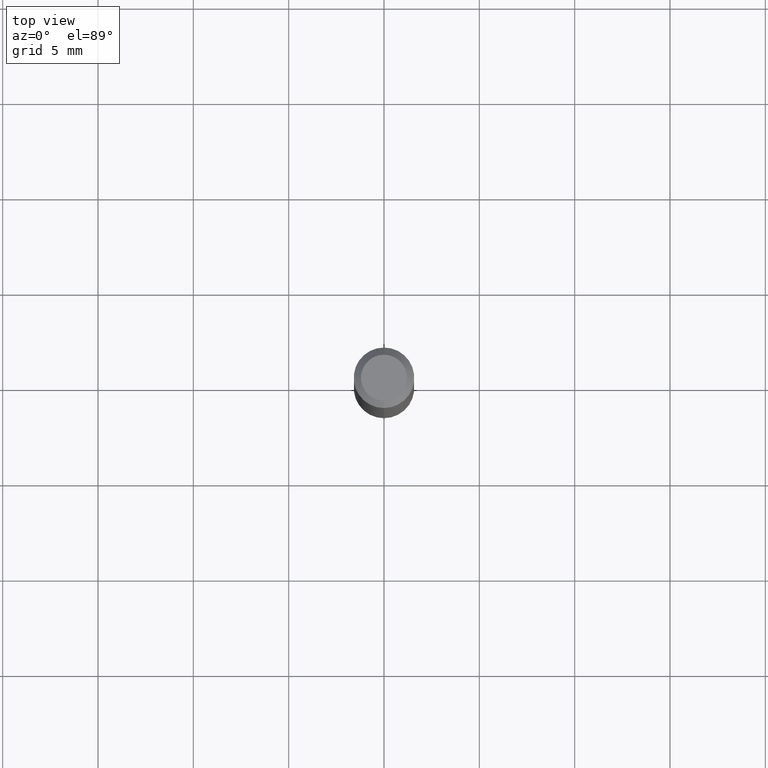
[diagram: clean part render]
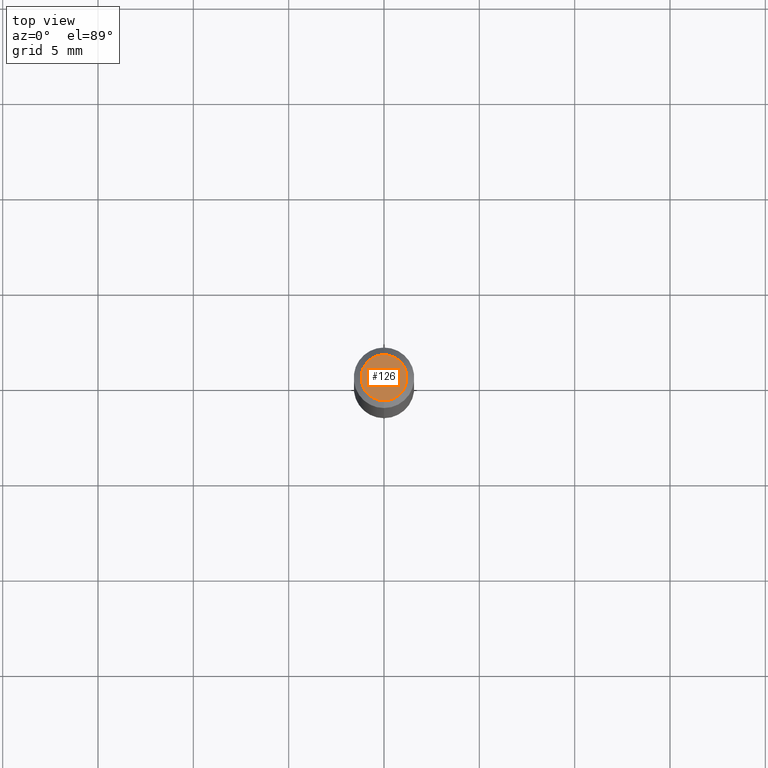
[diagram: same view with one face highlighted and labeled with its STEP entity id]
A machine part, top view. The second image highlights one B-rep face of the part: STEP entity #126.
In plain terms, the highlighted planar face has unit normal (0, -0, -1).
Its self-contained STEP definition (entity closure, byte-faithful):
#32 = VERTEX_POINT ( 'NONE', #72 ) ;
#34 = DIRECTION ( 'NONE',  ( -2.445435285253421308E-29, 3.491529342725255167E-15, 1.000000000000000000 ) ) ;
#36 = AXIS2_PLACEMENT_3D ( 'NONE', #492, #503, #469 ) ;
#72 = CARTESIAN_POINT ( 'NONE',  ( 3.840629472727447874E-16, 0.04749999999999999362, -1.747056831868805136E-16 ) ) ;
#123 = CARTESIAN_POINT ( 'NONE',  ( 3.316907271900976096E-16, 0.04749999999999999362, -1.702766634831650498E-16 ) ) ;
#126 = ADVANCED_FACE ( 'NONE', ( #230 ), #437, .F. ) ;
#158 = EDGE_CURVE ( 'NONE', #32, #336, #474, .T. ) ;
#183 = EDGE_LOOP ( 'NONE', ( #330, #454 ) ) ;
#230 = FACE_OUTER_BOUND ( 'NONE', #183, .T. ) ;
#233 = DIRECTION ( 'NONE',  ( 6.982962677686265922E-15, 1.000000000000000000, -3.491529342725254773E-15 ) ) ;
#273 = DIRECTION ( 'NONE',  ( 2.445435285253421028E-29, -3.491529342725254773E-15, -1.000000000000000000 ) ) ;
#330 = ORIENTED_EDGE ( 'NONE', *, *, #158, .T. ) ;
#333 = AXIS2_PLACEMENT_3D ( 'NONE', #470, #34, #391 ) ;
#336 = VERTEX_POINT ( 'NONE', #451 ) ;
#391 = DIRECTION ( 'NONE',  ( -6.982962677686266711E-15, -1.000000000000000000, 3.491529342725255562E-15 ) ) ;
#437 = PLANE ( 'NONE',  #504 ) ;
#439 = EDGE_CURVE ( 'NONE', #336, #32, #512, .T. ) ;
#451 = CARTESIAN_POINT ( 'NONE',  ( -3.773273898774340269E-16, -0.04749999999999999362, 1.569896043720187075E-16 ) ) ;
#454 = ORIENTED_EDGE ( 'NONE', *, *, #439, .T. ) ;
#469 = DIRECTION ( 'NONE',  ( -6.982962677686266711E-15, -1.000000000000000000, 3.491529342725255562E-15 ) ) ;
#470 = CARTESIAN_POINT ( 'NONE',  ( 2.166176212509684537E-46, -3.092810451006163325E-32, -8.858039407430904597E-18 ) ) ;
#474 = CIRCLE ( 'NONE', #333, 0.04749999999999999362 ) ;
#492 = CARTESIAN_POINT ( 'NONE',  ( 2.166176212509684537E-46, -3.092810451006163325E-32, -8.858039407430904597E-18 ) ) ;
#503 = DIRECTION ( 'NONE',  ( -2.445435285253421308E-29, 3.491529342725255167E-15, 1.000000000000000000 ) ) ;
#504 = AXIS2_PLACEMENT_3D ( 'NONE', #123, #273, #233 ) ;
#512 = CIRCLE ( 'NONE', #36, 0.04749999999999999362 ) ;